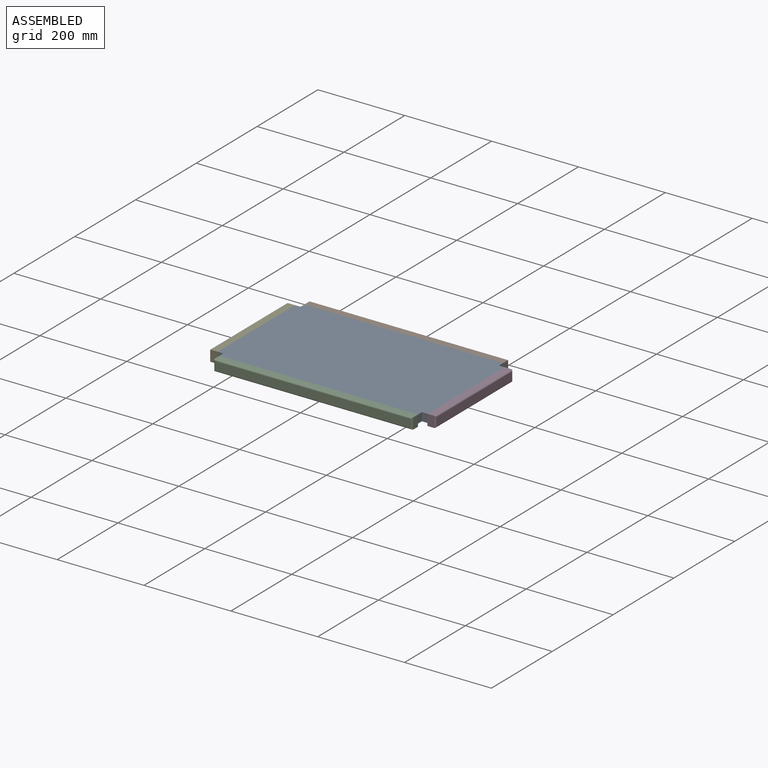
[diagram: assembled view]
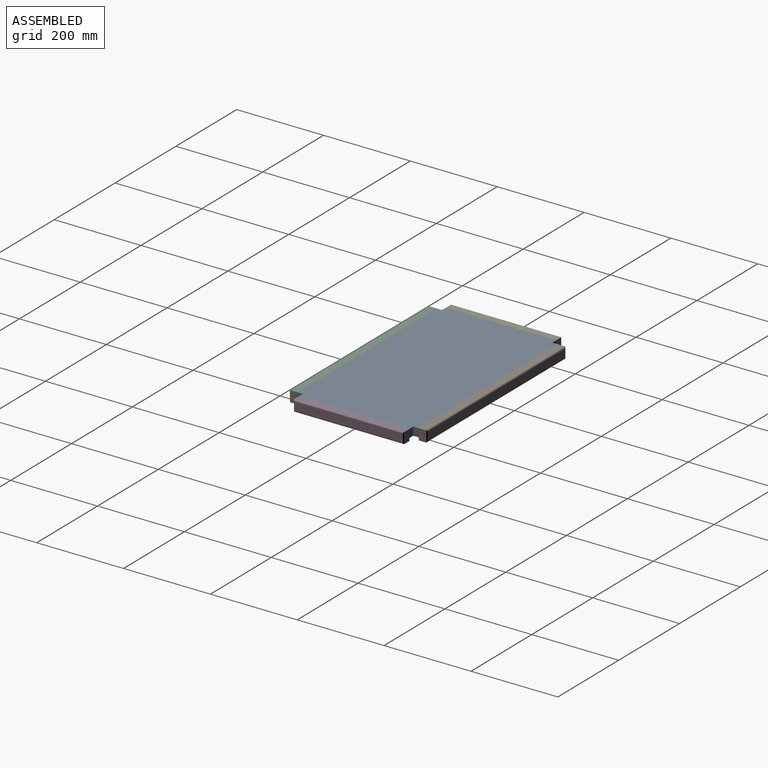
[diagram: assembled view, second angle]
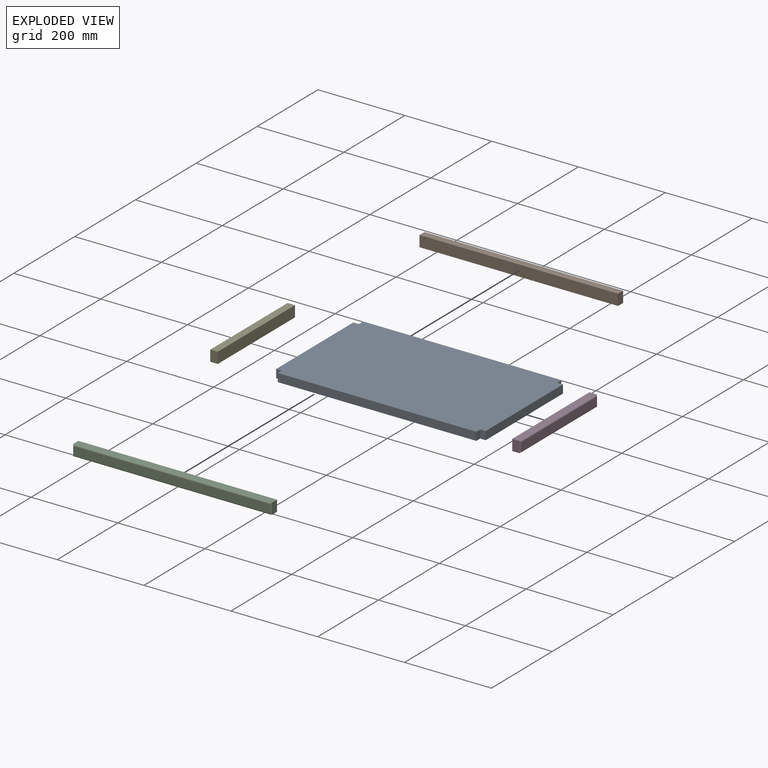
[diagram: exploded view]
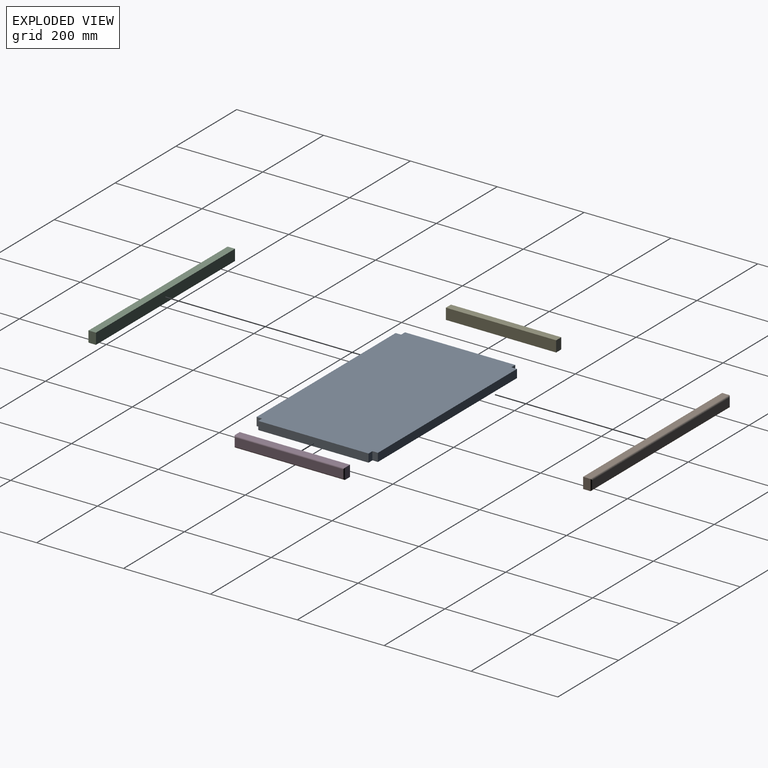
[diagram: exploded view, second angle]
ASSEMBLY  parts=5 mates=4
PART A: 14 faces, bbox 482.6x279.4x19.1 mm
  f0: plane 482.6x279.4mm, normal (0,0,1), area 134193.3mm2, adj f1,f2,f4,f5,f6,f7,f8,f9
  f1: plane 254x19.05mm, normal (1,0,0), area 4838.7mm2, adj f0,f3,f10,f12
  f2: plane 457.2x19.05mm, normal (0,1,0), area 8709.7mm2, adj f0,f3,f9,f13
  f3: plane 482.6x279.4mm, normal (0,0,-1), area 134193.3mm2, adj f1,f2,f4,f5,f6,f7,f8,f9
  f4: plane 457.2x19.05mm, normal (0,-1,0), area 8709.7mm2, adj f0,f3,f7,f11
  f5: plane 254x19.05mm, normal (-1,0,0), area 4838.7mm2, adj f0,f3,f6,f8
  f6: plane 19.05x12.7mm, normal (0,-1,0), area 241.9mm2, adj f0,f3,f5,f7
  f7: plane 19.05x12.7mm, normal (-1,0,0), area 241.9mm2, adj f0,f3,f4,f6
  f8: plane 19.05x12.7mm, normal (0,1,0), area 241.9mm2, adj f0,f3,f5,f9
  f9: plane 19.05x12.7mm, normal (-1,0,0), area 241.9mm2, adj f0,f2,f3,f8
  f10: plane 19.05x12.7mm, normal (0,-1,0), area 241.9mm2, adj f0,f1,f3,f11
  f11: plane 19.05x12.7mm, normal (1,0,0), area 241.9mm2, adj f0,f3,f4,f10
  f12: plane 19.05x12.7mm, normal (0,1,0), area 241.9mm2, adj f0,f1,f3,f13
  f13: plane 19.05x12.7mm, normal (1,0,0), area 241.9mm2, adj f0,f2,f3,f12
PART B: 10 faces, bbox 457.2x19.1x25.4 mm
  f0: plane 25.4x15.88mm, normal (-1,0,0), area 403.2mm2, adj f1,f4,f5,f6
  f1: plane 457.2x25.4mm, normal (0,-1,0), area 11612.9mm2, adj f0,f2,f4,f5
  f2: plane 25.4x15.88mm, normal (1,0,0), area 403.2mm2, adj f1,f4,f5,f9
  f3: plane 450.85x19.05mm, normal (0,1,0), area 8588.7mm2, adj f6,f7,f8,f9
  f4: plane 457.2x15.88mm, normal (0,0,-1), area 7258.1mm2, adj f0,f1,f2,f7
  f5: plane 457.2x15.88mm, normal (0,0,1), area 7258.1mm2, adj f0,f1,f2,f8
  f6: cylinder r=3.17mm len=25.4mm, axis (0,0,1), area 115.2mm2, adj f0,f3,f7,f8
  f7: cylinder r=3.17mm len=457.2mm, axis (1,0,0), area 2268.7mm2, adj f3,f4,f6,f9
  f8: cylinder r=3.17mm len=457.2mm, axis (-1,0,0), area 2268.7mm2, adj f3,f5,f6,f9
  f9: cylinder r=3.17mm len=25.4mm, axis (0,0,1), area 115.2mm2, adj f2,f3,f7,f8
PART C: same geometry as B
PART D: 10 faces, bbox 19.1x254x25.4 mm
  f0: plane 254x25.4mm, normal (1,0,0), area 6451.6mm2, adj f1,f3,f4,f5
  f1: plane 25.4x15.88mm, normal (0,1,0), area 403.2mm2, adj f0,f4,f5,f9
  f2: plane 247.65x19.05mm, normal (-1,0,0), area 4717.7mm2, adj f6,f7,f8,f9
  f3: plane 25.4x15.88mm, normal (0,-1,0), area 403.2mm2, adj f0,f4,f5,f6
  f4: plane 254x15.88mm, normal (0,0,-1), area 4032.3mm2, adj f0,f1,f3,f7
  f5: plane 254x15.88mm, normal (0,0,1), area 4032.3mm2, adj f0,f1,f3,f8
  f6: cylinder r=3.17mm len=25.4mm, axis (0,0,1), area 115.2mm2, adj f2,f3,f7,f8
  f7: cylinder r=3.17mm len=254mm, axis (0,1,0), area 1255.3mm2, adj f2,f4,f6,f9
  f8: cylinder r=3.17mm len=254mm, axis (0,-1,0), area 1255.3mm2, adj f2,f5,f6,f9
  f9: cylinder r=3.17mm len=25.4mm, axis (0,0,-1), area 115.2mm2, adj f1,f2,f7,f8
PART E: same geometry as D
PLACE A at identity fixed
PLACE B t=(-3.17,23.81,19.05)mm
PLACE C rot(axis=(0,0,1),180deg) t=(3.17,-23.81,19.05)mm
PLACE D rot(axis=(0,0,-1),180deg) t=(30.16,0,19.05)mm
PLACE E t=(-30.16,0,19.05)mm
MATE fastened A.f4 <-> C.f1  axis (0,-1,0) through (-228.6,-139.7,19.05)mm
MATE fastened B.f1 <-> A.f2  axis (0,-1,0) through (-228.6,139.7,19.05)mm
MATE fastened E.f0 <-> A.f5  axis (1,0,0) through (-241.3,127,19.05)mm
MATE fastened A.f1 <-> D.f0  axis (1,0,0) through (241.3,-127,19.05)mm
